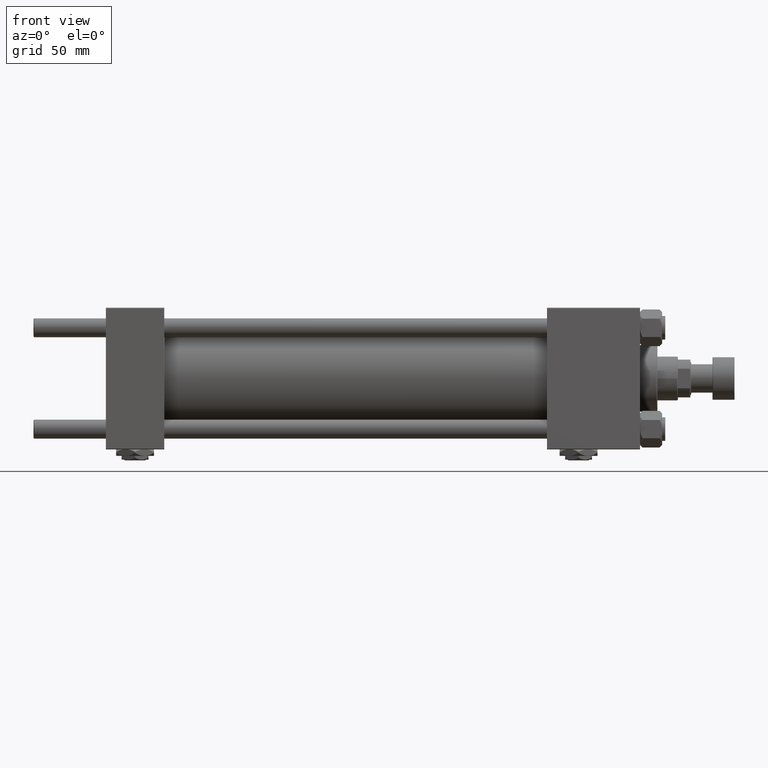
[diagram: clean part render]
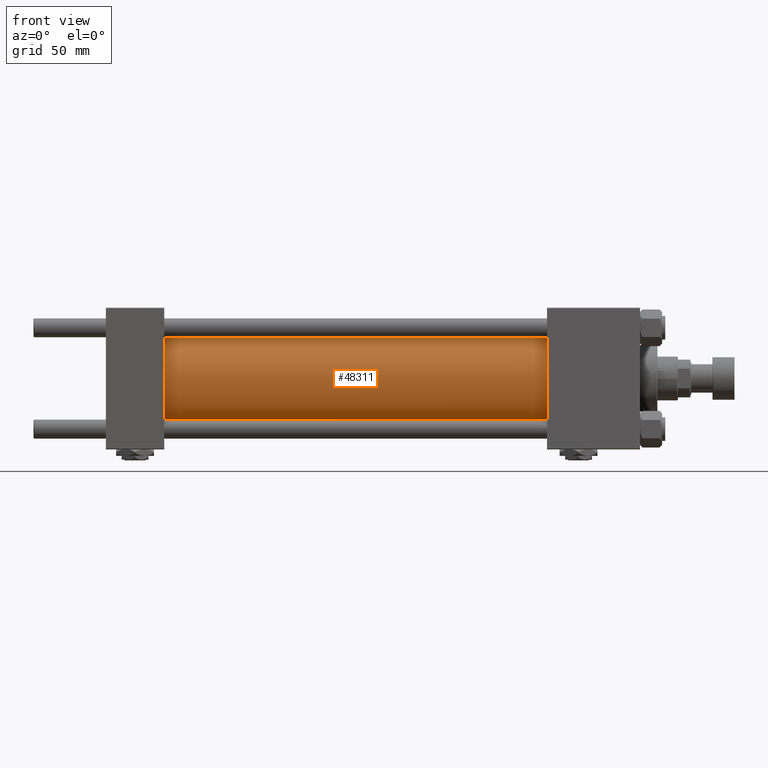
[diagram: same view with one face highlighted and labeled with its STEP entity id]
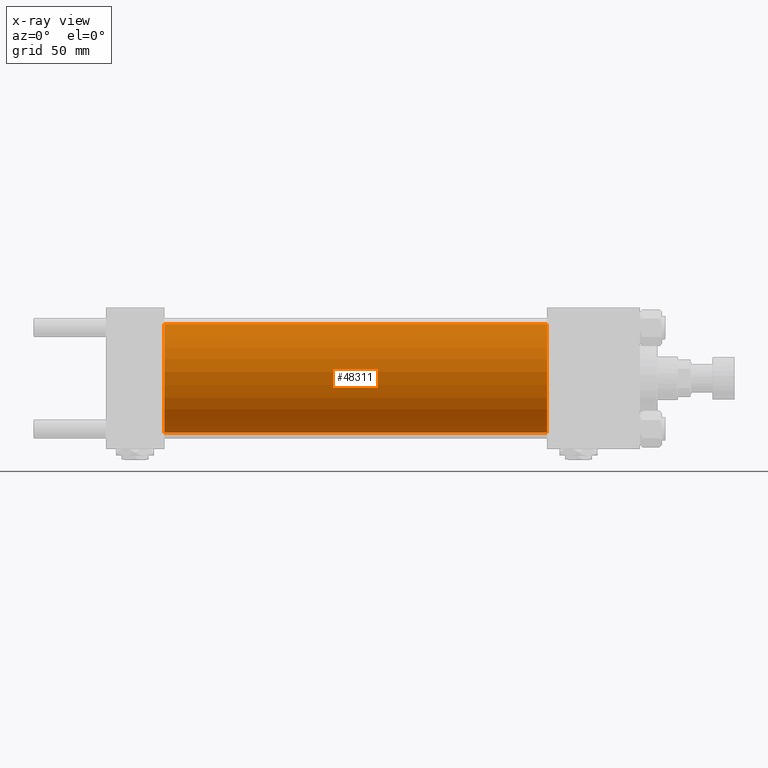
[diagram: x-ray of the same camera — body ghosted, the highlighted face saturated]
A machine part, front view. The second image highlights one B-rep face of the part: STEP entity #48311.
The next image is the same camera in x-ray: the body ghosted, the highlighted face saturated — about 0% of this face is hidden behind the body in this view.
In plain terms, the highlighted cylindrical surface (partial cylindrical patch) has radius 34.5 mm, axis along (-1, -0, -0).
Its self-contained STEP definition (entity closure, byte-faithful):
#600 = AXIS2_PLACEMENT_3D ( 'NONE', #35291, #31586, #22854 ) ;
#1016 = CARTESIAN_POINT ( 'NONE',  ( 37.00000000000000711, 4.225031457058367344E-15, -34.49999999999999289 ) ) ;
#2291 = CIRCLE ( 'NONE', #31838, 34.49999999999999289 ) ;
#2886 = DIRECTION ( 'NONE',  ( 0.000000000000000000, 0.000000000000000000, 1.000000000000000000 ) ) ;
#4302 = DIRECTION ( 'NONE',  ( -1.000000000000000000, -0.000000000000000000, -0.000000000000000000 ) ) ;
#4322 = EDGE_LOOP ( 'NONE', ( #19865, #7474, #14097, #35545 ) ) ;
#5597 = VERTEX_POINT ( 'NONE', #39006 ) ;
#6420 = CARTESIAN_POINT ( 'NONE',  ( 37.00000000000000711, 0.000000000000000000, 0.000000000000000000 ) ) ;
#7369 = CYLINDRICAL_SURFACE ( 'NONE', #45838, 34.49999999999999289 ) ;
#7474 = ORIENTED_EDGE ( 'NONE', *, *, #12354, .F. ) ;
#11710 = DIRECTION ( 'NONE',  ( 0.000000000000000000, 0.000000000000000000, 1.000000000000000000 ) ) ;
#12354 = EDGE_CURVE ( 'NONE', #5597, #13010, #25911, .T. ) ;
#13010 = VERTEX_POINT ( 'NONE', #28723 ) ;
#14097 = ORIENTED_EDGE ( 'NONE', *, *, #41790, .T. ) ;
#15203 = CARTESIAN_POINT ( 'NONE',  ( 279.9999999999999432, 4.225031457058367344E-15, -34.49999999999999289 ) ) ;
#19865 = ORIENTED_EDGE ( 'NONE', *, *, #39747, .F. ) ;
#22854 = DIRECTION ( 'NONE',  ( 0.000000000000000000, 0.000000000000000000, -1.000000000000000000 ) ) ;
#24644 = VERTEX_POINT ( 'NONE', #44890 ) ;
#25911 = CIRCLE ( 'NONE', #600, 34.49999999999999289 ) ;
#28535 = EDGE_CURVE ( 'NONE', #24644, #49529, #2291, .T. ) ;
#28723 = CARTESIAN_POINT ( 'NONE',  ( 279.9999999999999432, 4.225031457058367344E-15, -34.49999999999999289 ) ) ;
#31301 = VECTOR ( 'NONE', #47467, 1000.000000000000000 ) ;
#31433 = FACE_OUTER_BOUND ( 'NONE', #4322, .T. ) ;
#31586 = DIRECTION ( 'NONE',  ( 1.000000000000000000, 0.000000000000000000, 0.000000000000000000 ) ) ;
#31838 = AXIS2_PLACEMENT_3D ( 'NONE', #6420, #43716, #11710 ) ;
#34865 = DIRECTION ( 'NONE',  ( -1.000000000000000000, -0.000000000000000000, -0.000000000000000000 ) ) ;
#35291 = CARTESIAN_POINT ( 'NONE',  ( 279.9999999999999432, 0.000000000000000000, 0.000000000000000000 ) ) ;
#35545 = ORIENTED_EDGE ( 'NONE', *, *, #28535, .T. ) ;
#36299 = CARTESIAN_POINT ( 'NONE',  ( 279.9999999999999432, 0.000000000000000000, 34.49999999999999289 ) ) ;
#38128 = VECTOR ( 'NONE', #4302, 1000.000000000000000 ) ;
#38742 = LINE ( 'NONE', #15203, #31301 ) ;
#39006 = CARTESIAN_POINT ( 'NONE',  ( 279.9999999999999432, 0.000000000000000000, 34.49999999999999289 ) ) ;
#39747 = EDGE_CURVE ( 'NONE', #13010, #49529, #38742, .T. ) ;
#40525 = LINE ( 'NONE', #36299, #38128 ) ;
#41790 = EDGE_CURVE ( 'NONE', #5597, #24644, #40525, .T. ) ;
#43716 = DIRECTION ( 'NONE',  ( 1.000000000000000000, -0.000000000000000000, 0.000000000000000000 ) ) ;
#44890 = CARTESIAN_POINT ( 'NONE',  ( 37.00000000000000711, 0.000000000000000000, 34.49999999999999289 ) ) ;
#45838 = AXIS2_PLACEMENT_3D ( 'NONE', #47569, #34865, #2886 ) ;
#47467 = DIRECTION ( 'NONE',  ( -1.000000000000000000, -0.000000000000000000, -0.000000000000000000 ) ) ;
#47569 = CARTESIAN_POINT ( 'NONE',  ( 279.9999999999999432, 0.000000000000000000, 0.000000000000000000 ) ) ;
#48311 = ADVANCED_FACE ( 'NONE', ( #31433 ), #7369, .T. ) ;
#49529 = VERTEX_POINT ( 'NONE', #1016 ) ;